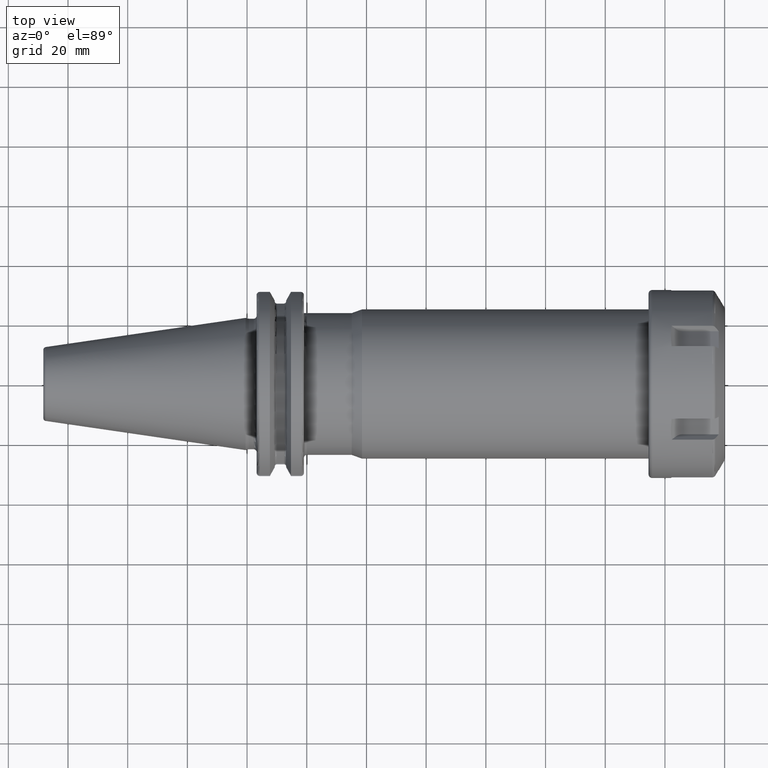
[diagram: clean part render]
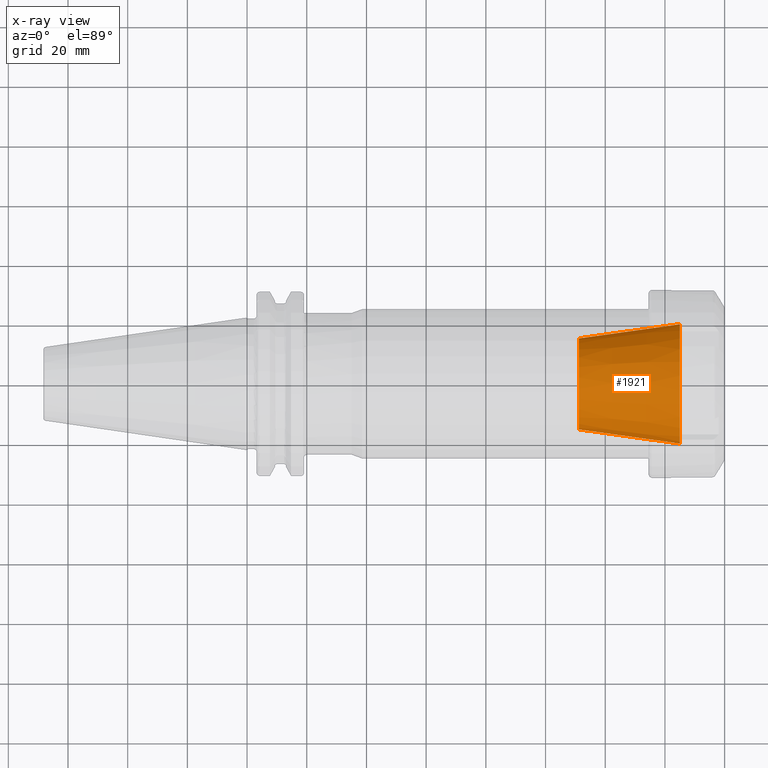
[diagram: x-ray — body ghosted, one internal face saturated and labeled with its STEP entity id]
A machine part, top view, then the same camera in x-ray: the body is ghosted and one INTERNAL B-rep face — a face not visible from any outside direction — is saturated and labeled: STEP entity #1921.
In plain terms, the highlighted conical surface has half-angle 8 deg.
Its self-contained STEP definition (entity closure, byte-faithful):
#287=CARTESIAN_POINT('',(1.45E2,0.E0,0.E0));
#288=DIRECTION('',(1.E0,0.E0,0.E0));
#289=DIRECTION('',(0.E0,1.E0,0.E0));
#290=AXIS2_PLACEMENT_3D('',#287,#288,#289);
#297=DIRECTION('',(-9.902680687416E-1,1.391731009601E-1,0.E0));
#298=VECTOR('',#297,3.413015853806E1);
#299=CARTESIAN_POINT('',(1.45E2,-2.E1,0.E0));
#300=LINE('',#299,#298);
#301=DIRECTION('',(-9.902680687416E-1,-1.391731009601E-1,0.E0));
#302=VECTOR('',#301,3.413015853806E1);
#303=CARTESIAN_POINT('',(1.45E2,2.E1,0.E0));
#304=LINE('',#303,#302);
#318=CARTESIAN_POINT('',(1.112019938187E2,0.E0,0.E0));
#319=DIRECTION('',(1.E0,0.E0,0.E0));
#320=DIRECTION('',(0.E0,1.E0,0.E0));
#321=AXIS2_PLACEMENT_3D('',#318,#319,#320);
#1514=CARTESIAN_POINT('',(1.112019938187E2,1.525E1,0.E0));
#1516=VERTEX_POINT('',#1514);
#1518=CARTESIAN_POINT('',(1.112019938187E2,-1.525E1,0.E0));
#1520=VERTEX_POINT('',#1518);
#1522=CARTESIAN_POINT('',(1.45E2,2.E1,0.E0));
#1523=CARTESIAN_POINT('',(1.45E2,-2.E1,0.E0));
#1524=VERTEX_POINT('',#1522);
#1525=VERTEX_POINT('',#1523);
#1907=CARTESIAN_POINT('',(1.281009969093E2,0.E0,0.E0));
#1908=DIRECTION('',(1.E0,0.E0,0.E0));
#1909=DIRECTION('',(0.E0,-1.E0,0.E0));
#1910=AXIS2_PLACEMENT_3D('',#1907,#1908,#1909);
#1911=CONICAL_SURFACE('',#1910,1.7625E1,8.E0);
#1912=ORIENTED_EDGE('',*,*,#1900,.F.);
#1914=ORIENTED_EDGE('',*,*,#1913,.T.);
#1916=ORIENTED_EDGE('',*,*,#1915,.T.);
#1918=ORIENTED_EDGE('',*,*,#1917,.F.);
#1919=EDGE_LOOP('',(#1912,#1914,#1916,#1918));
#1920=FACE_OUTER_BOUND('',#1919,.F.);
#1921=ADVANCED_FACE('',(#1920),#1911,.F.);
#291=CIRCLE('',#290,2.E1);
#322=CIRCLE('',#321,1.525E1);
#1900=EDGE_CURVE('',#1524,#1525,#291,.T.);
#1913=EDGE_CURVE('',#1524,#1516,#304,.T.);
#1915=EDGE_CURVE('',#1516,#1520,#322,.T.);
#1917=EDGE_CURVE('',#1525,#1520,#300,.T.);